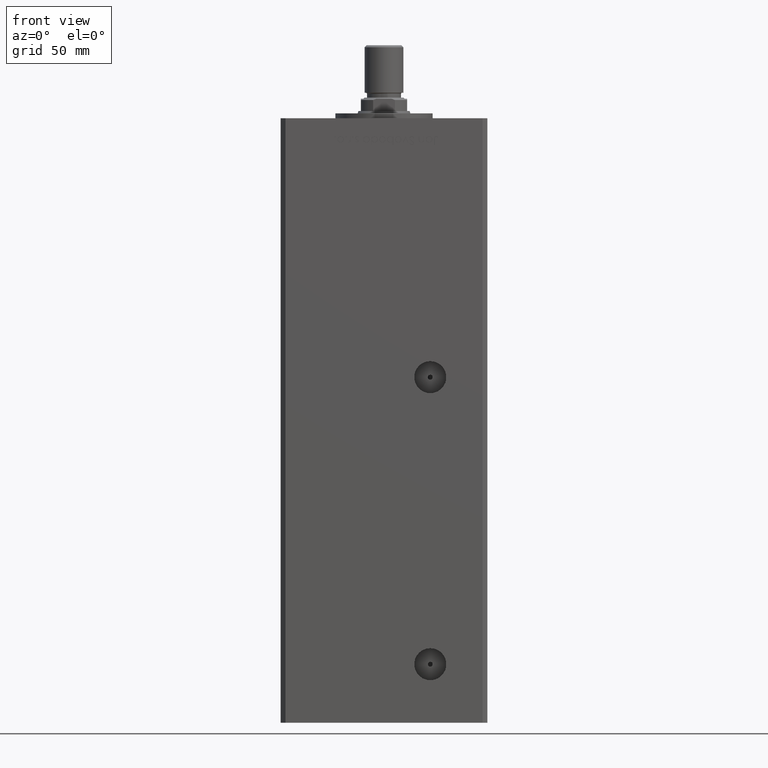
[diagram: clean part render]
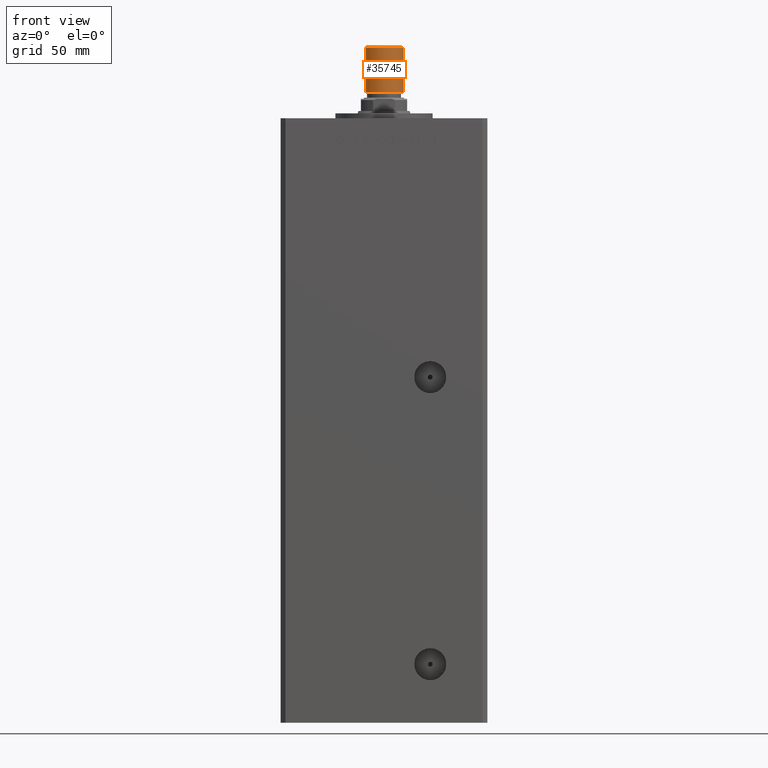
[diagram: same view with one face highlighted and labeled with its STEP entity id]
A machine part, front view. The second image highlights one B-rep face of the part: STEP entity #35745.
In plain terms, the highlighted cylindrical surface (edge-blend (fillet) strip) has radius 8 mm, axis along (0, 0, 1).
Its self-contained STEP definition (entity closure, byte-faithful):
#671 = DIRECTION ( 'NONE',  ( -0.000000000000000000, -0.000000000000000000, -1.000000000000000000 ) ) ;
#952 = CIRCLE ( 'NONE', #26342, 8.000000000000000000 ) ;
#2033 = CARTESIAN_POINT ( 'NONE',  ( -8.000000000000000000, 0.000000000000000000, 0.8000000000000055955 ) ) ;
#3450 = EDGE_LOOP ( 'NONE', ( #8936, #50349, #24274, #28569 ) ) ;
#5745 = EDGE_CURVE ( 'NONE', #48366, #22817, #952, .T. ) ;
#5887 = VECTOR ( 'NONE', #32437, 1000.000000000000000 ) ;
#8043 = CARTESIAN_POINT ( 'NONE',  ( -8.000000000000000000, 0.000000000000000000, 19.50000000000000000 ) ) ;
#8464 = DIRECTION ( 'NONE',  ( 1.000000000000000000, 0.000000000000000000, 0.000000000000000000 ) ) ;
#8892 = LINE ( 'NONE', #41205, #33812 ) ;
#8936 = ORIENTED_EDGE ( 'NONE', *, *, #47472, .F. ) ;
#15510 = CARTESIAN_POINT ( 'NONE',  ( 8.000000000000000000, 9.797174393178825657E-16, 19.50000000000000000 ) ) ;
#15545 = AXIS2_PLACEMENT_3D ( 'NONE', #35543, #31566, #35803 ) ;
#16560 = EDGE_CURVE ( 'NONE', #51223, #19746, #43900, .T. ) ;
#19746 = VERTEX_POINT ( 'NONE', #22929 ) ;
#19883 = DIRECTION ( 'NONE',  ( 0.000000000000000000, 0.000000000000000000, 1.000000000000000000 ) ) ;
#19905 = FACE_OUTER_BOUND ( 'NONE', #3450, .T. ) ;
#22817 = VERTEX_POINT ( 'NONE', #27586 ) ;
#22929 = CARTESIAN_POINT ( 'NONE',  ( 8.000000000000000000, 9.797174393178825657E-16, 0.8000000000000055955 ) ) ;
#24274 = ORIENTED_EDGE ( 'NONE', *, *, #48072, .T. ) ;
#26342 = AXIS2_PLACEMENT_3D ( 'NONE', #28874, #19883, #8464 ) ;
#27586 = CARTESIAN_POINT ( 'NONE',  ( 8.000000000000000000, 9.797174393178825657E-16, 19.50000000000000000 ) ) ;
#28569 = ORIENTED_EDGE ( 'NONE', *, *, #16560, .T. ) ;
#28874 = CARTESIAN_POINT ( 'NONE',  ( 0.000000000000000000, 0.000000000000000000, 19.50000000000000000 ) ) ;
#30318 = CARTESIAN_POINT ( 'NONE',  ( 0.000000000000000000, 0.000000000000000000, 0.8000000000000055955 ) ) ;
#31566 = DIRECTION ( 'NONE',  ( -0.000000000000000000, -0.000000000000000000, -1.000000000000000000 ) ) ;
#32437 = DIRECTION ( 'NONE',  ( -0.000000000000000000, -0.000000000000000000, -1.000000000000000000 ) ) ;
#33812 = VECTOR ( 'NONE', #671, 1000.000000000000000 ) ;
#35543 = CARTESIAN_POINT ( 'NONE',  ( 0.000000000000000000, 0.000000000000000000, 19.50000000000000000 ) ) ;
#35745 = ADVANCED_FACE ( 'NONE', ( #19905 ), #51972, .T. ) ;
#35803 = DIRECTION ( 'NONE',  ( -1.000000000000000000, 0.000000000000000000, 0.000000000000000000 ) ) ;
#36933 = LINE ( 'NONE', #15510, #5887 ) ;
#41205 = CARTESIAN_POINT ( 'NONE',  ( -8.000000000000000000, 0.000000000000000000, 19.50000000000000000 ) ) ;
#43900 = CIRCLE ( 'NONE', #48992, 8.000000000000000000 ) ;
#47472 = EDGE_CURVE ( 'NONE', #22817, #19746, #36933, .T. ) ;
#48059 = DIRECTION ( 'NONE',  ( 1.000000000000000000, 0.000000000000000000, 0.000000000000000000 ) ) ;
#48072 = EDGE_CURVE ( 'NONE', #48366, #51223, #8892, .T. ) ;
#48366 = VERTEX_POINT ( 'NONE', #8043 ) ;
#48992 = AXIS2_PLACEMENT_3D ( 'NONE', #30318, #51248, #48059 ) ;
#50349 = ORIENTED_EDGE ( 'NONE', *, *, #5745, .F. ) ;
#51223 = VERTEX_POINT ( 'NONE', #2033 ) ;
#51248 = DIRECTION ( 'NONE',  ( -0.000000000000000000, -0.000000000000000000, 1.000000000000000000 ) ) ;
#51972 = CYLINDRICAL_SURFACE ( 'NONE', #15545, 8.000000000000000000 ) ;